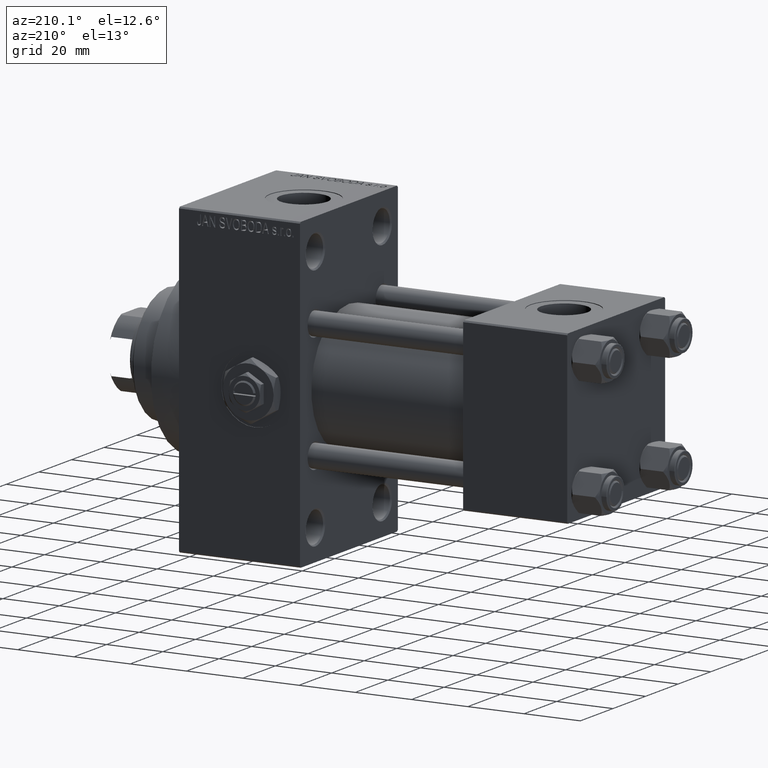
[diagram: clean part render]
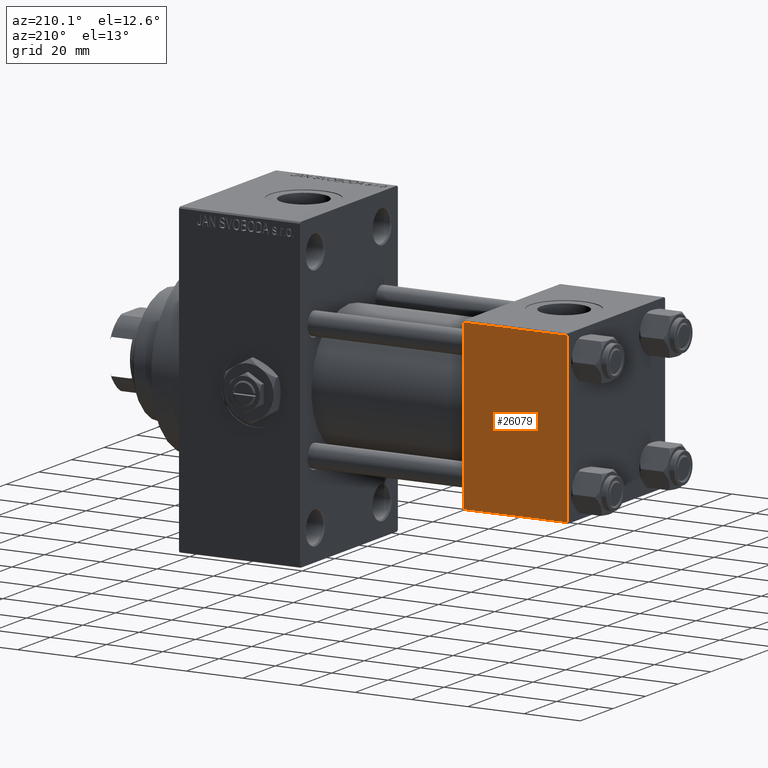
[diagram: same view with one face highlighted and labeled with its STEP entity id]
A machine part, auxiliary view. The second image highlights one B-rep face of the part: STEP entity #26079.
In plain terms, the highlighted planar face has unit normal (0, 1, 0).
Its self-contained STEP definition (entity closure, byte-faithful):
#38 = VERTEX_POINT ( 'NONE', #26037 ) ;
#172 = CARTESIAN_POINT ( 'NONE',  ( 37.00000000000000000, 29.99999999999999289, 29.50000000000000000 ) ) ;
#735 = LINE ( 'NONE', #4000, #48718 ) ;
#2327 = CARTESIAN_POINT ( 'NONE',  ( 0.000000000000000000, 29.99999999999999289, 30.00000000000000000 ) ) ;
#2590 = DIRECTION ( 'NONE',  ( 0.000000000000000000, 0.000000000000000000, -1.000000000000000000 ) ) ;
#4000 = CARTESIAN_POINT ( 'NONE',  ( 37.00000000000000000, 29.99999999999999289, 30.00000000000000000 ) ) ;
#4692 = ORIENTED_EDGE ( 'NONE', *, *, #12071, .T. ) ;
#4878 = CARTESIAN_POINT ( 'NONE',  ( 37.00000000000000000, 29.99999999999999289, 29.50000000000000000 ) ) ;
#5234 = PLANE ( 'NONE',  #37405 ) ;
#9377 = ORIENTED_EDGE ( 'NONE', *, *, #20192, .F. ) ;
#10506 = CARTESIAN_POINT ( 'NONE',  ( 0.000000000000000000, 29.99999999999999289, 29.50000000000000000 ) ) ;
#10519 = VERTEX_POINT ( 'NONE', #10506 ) ;
#11748 = ORIENTED_EDGE ( 'NONE', *, *, #14212, .T. ) ;
#12071 = EDGE_CURVE ( 'NONE', #20971, #38, #36018, .T. ) ;
#12716 = EDGE_LOOP ( 'NONE', ( #22673, #4692, #9377, #11748 ) ) ;
#14212 = EDGE_CURVE ( 'NONE', #10519, #43801, #38982, .T. ) ;
#14242 = VECTOR ( 'NONE', #2590, 1000.000000000000000 ) ;
#16931 = DIRECTION ( 'NONE',  ( 0.000000000000000000, -0.000000000000000000, 1.000000000000000000 ) ) ;
#19099 = DIRECTION ( 'NONE',  ( 1.000000000000000000, 0.000000000000000000, 0.000000000000000000 ) ) ;
#20192 = EDGE_CURVE ( 'NONE', #10519, #38, #44393, .T. ) ;
#20971 = VERTEX_POINT ( 'NONE', #39754 ) ;
#22673 = ORIENTED_EDGE ( 'NONE', *, *, #31195, .T. ) ;
#24408 = DIRECTION ( 'NONE',  ( -0.000000000000000000, 1.000000000000000000, 0.000000000000000000 ) ) ;
#25187 = VECTOR ( 'NONE', #19099, 1000.000000000000000 ) ;
#26037 = CARTESIAN_POINT ( 'NONE',  ( 0.000000000000000000, 29.99999999999999289, -29.50000000000000000 ) ) ;
#26079 = ADVANCED_FACE ( 'NONE', ( #31863 ), #5234, .T. ) ;
#31195 = EDGE_CURVE ( 'NONE', #43801, #20971, #735, .T. ) ;
#31353 = DIRECTION ( 'NONE',  ( 0.000000000000000000, 0.000000000000000000, -1.000000000000000000 ) ) ;
#31529 = CARTESIAN_POINT ( 'NONE',  ( 37.00000000000000000, 29.99999999999999289, -29.50000000000000000 ) ) ;
#31863 = FACE_OUTER_BOUND ( 'NONE', #12716, .T. ) ;
#36018 = LINE ( 'NONE', #31529, #43842 ) ;
#37405 = AXIS2_PLACEMENT_3D ( 'NONE', #43799, #24408, #16931 ) ;
#38982 = LINE ( 'NONE', #4878, #25187 ) ;
#39498 = DIRECTION ( 'NONE',  ( -1.000000000000000000, 0.000000000000000000, 0.000000000000000000 ) ) ;
#39754 = CARTESIAN_POINT ( 'NONE',  ( 37.00000000000000000, 29.99999999999999289, -29.50000000000000000 ) ) ;
#43799 = CARTESIAN_POINT ( 'NONE',  ( 37.00000000000000000, 29.99999999999999289, 30.00000000000000000 ) ) ;
#43801 = VERTEX_POINT ( 'NONE', #172 ) ;
#43842 = VECTOR ( 'NONE', #39498, 1000.000000000000000 ) ;
#44393 = LINE ( 'NONE', #2327, #14242 ) ;
#48718 = VECTOR ( 'NONE', #31353, 1000.000000000000000 ) ;